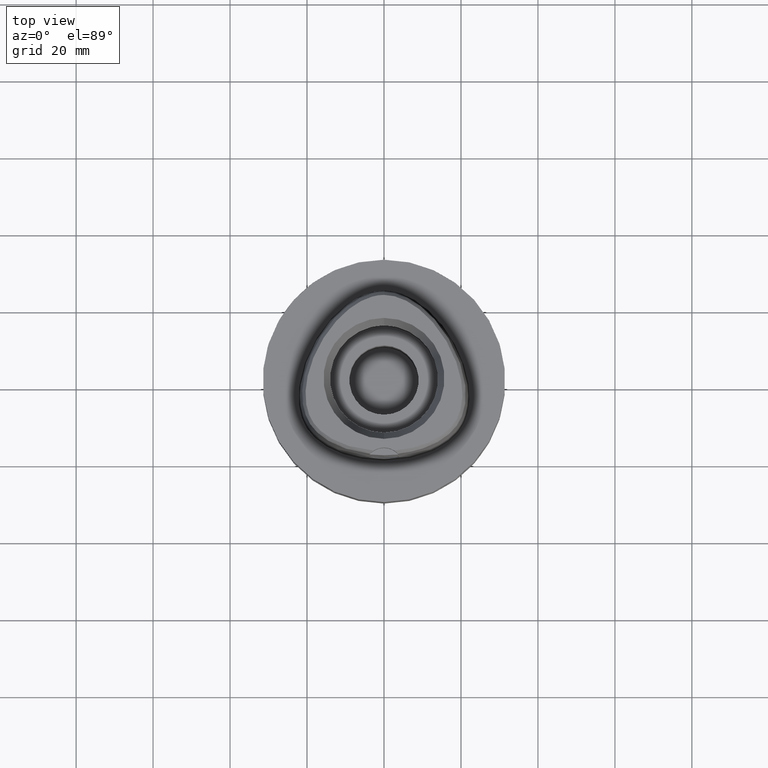
[diagram: clean part render]
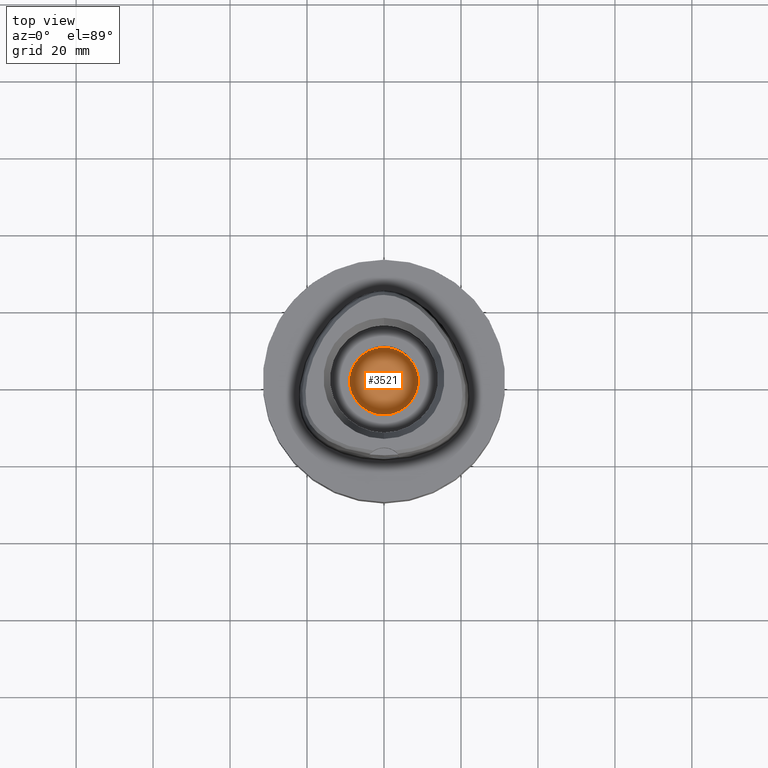
[diagram: same view with one face highlighted and labeled with its STEP entity id]
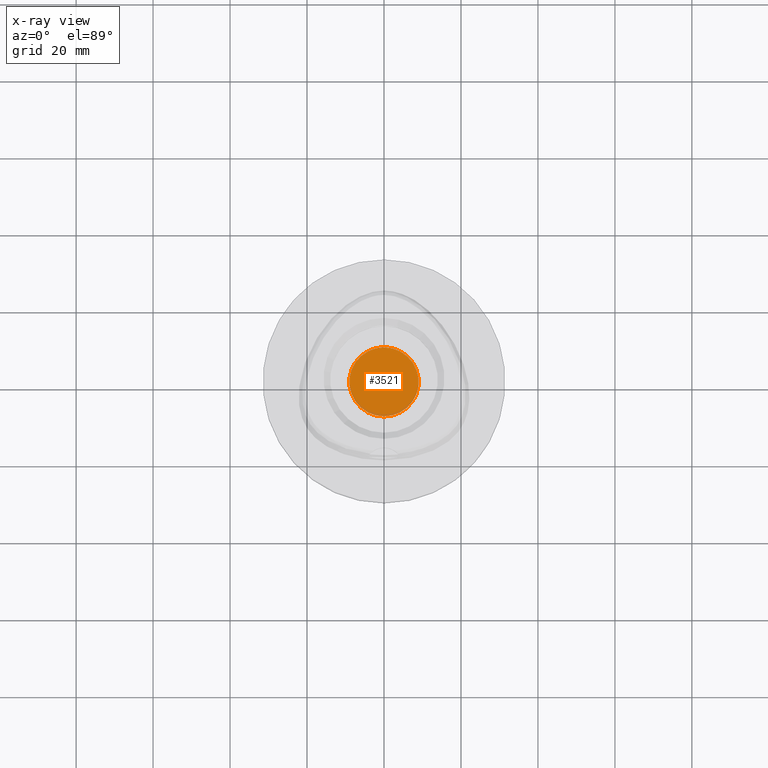
[diagram: x-ray of the same camera — body ghosted, the highlighted face saturated]
A machine part, top view. The second image highlights one B-rep face of the part: STEP entity #3521.
The next image is the same camera in x-ray: the body ghosted, the highlighted face saturated — about 3% of this face is hidden behind the body in this view.
In plain terms, the highlighted planar face has unit normal (0, 0, -1).
Its self-contained STEP definition (entity closure, byte-faithful):
#1532=CARTESIAN_POINT('',(0.E0,0.E0,-1.6E1));
#1533=DIRECTION('',(0.E0,0.E0,-1.E0));
#1534=DIRECTION('',(0.E0,-1.E0,0.E0));
#1535=AXIS2_PLACEMENT_3D('',#1532,#1533,#1534);
#1540=CARTESIAN_POINT('',(0.E0,0.E0,-1.6E1));
#1541=DIRECTION('',(0.E0,0.E0,-1.E0));
#1542=DIRECTION('',(0.E0,1.E0,0.E0));
#1543=AXIS2_PLACEMENT_3D('',#1540,#1541,#1542);
#1766=CARTESIAN_POINT('',(0.E0,9.E0,-1.6E1));
#1767=VERTEX_POINT('',#1766);
#1768=CARTESIAN_POINT('',(0.E0,-9.E0,-1.6E1));
#1769=VERTEX_POINT('',#1768);
#3512=CARTESIAN_POINT('',(0.E0,1.028703311284E-14,-1.6E1));
#3513=DIRECTION('',(0.E0,0.E0,-1.E0));
#3514=DIRECTION('',(0.E0,-1.E0,0.E0));
#3515=AXIS2_PLACEMENT_3D('',#3512,#3513,#3514);
#3516=PLANE('',#3515);
#3517=ORIENTED_EDGE('',*,*,#3491,.T.);
#3518=ORIENTED_EDGE('',*,*,#3505,.T.);
#3519=EDGE_LOOP('',(#3517,#3518));
#3520=FACE_OUTER_BOUND('',#3519,.F.);
#1536=CIRCLE('',#1535,9.E0);
#1544=CIRCLE('',#1543,9.E0);
#3491=EDGE_CURVE('',#1769,#1767,#1536,.T.);
#3505=EDGE_CURVE('',#1767,#1769,#1544,.T.);
#3521=ADVANCED_FACE('',(#3520),#3516,.F.);